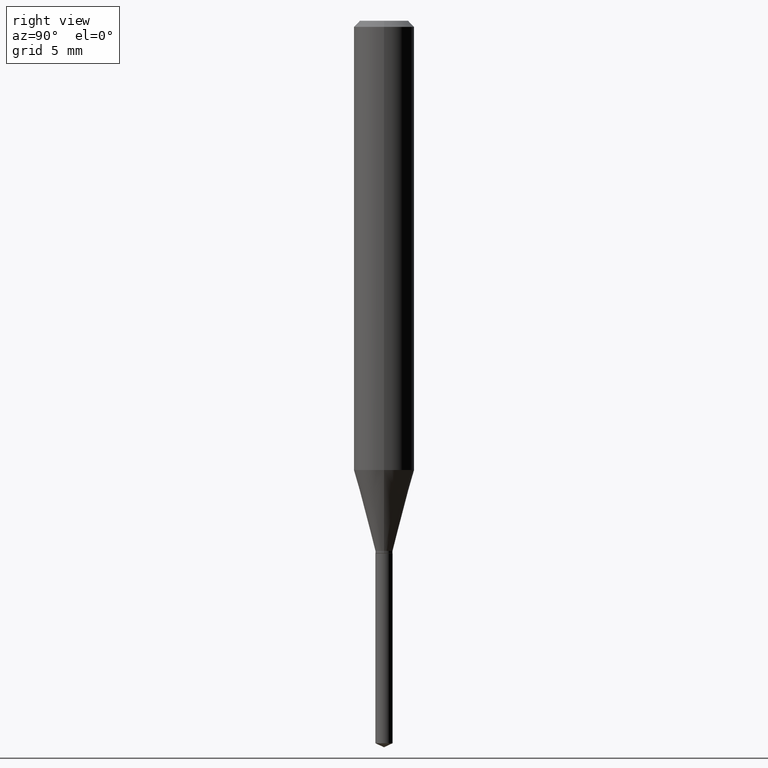
[diagram: clean part render]
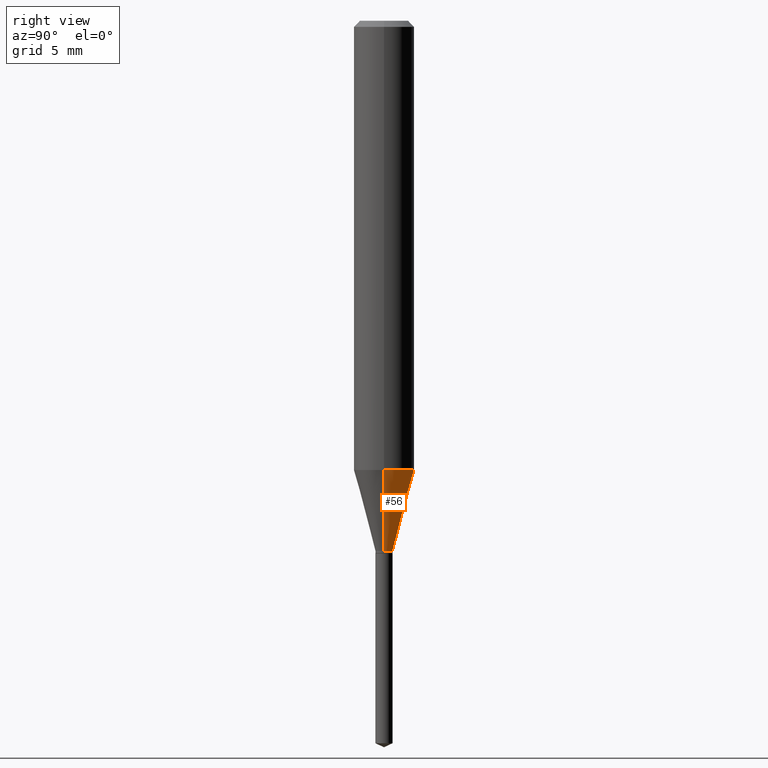
[diagram: same view with one face highlighted and labeled with its STEP entity id]
A machine part, right view. The second image highlights one B-rep face of the part: STEP entity #56.
In plain terms, the highlighted conical surface has half-angle 15 deg.
Its self-contained STEP definition (entity closure, byte-faithful):
#7 = CIRCLE ( 'NONE', #146, 0.01770000000000000046 ) ;
#8 = VERTEX_POINT ( 'NONE', #40 ) ;
#16 = LINE ( 'NONE', #428, #79 ) ;
#19 = DIRECTION ( 'NONE',  ( -2.445468806185136597E-29, 3.491481338843145583E-15, 1.000000000000000000 ) ) ;
#40 = CARTESIAN_POINT ( 'NONE',  ( -0.06250000000000012490, -2.794274130170721718E-15, -0.9275041238209144057 ) ) ;
#47 = DIRECTION ( 'NONE',  ( 1.000000000000000000, -6.982962677686271444E-15, 0.000000000000000000 ) ) ;
#56 = ADVANCED_FACE ( 'NONE', ( #100 ), #205, .T. ) ;
#73 = EDGE_CURVE ( 'NONE', #264, #302, #16, .T. ) ;
#79 = VECTOR ( 'NONE', #288, 39.37007874015748854 ) ;
#100 = FACE_OUTER_BOUND ( 'NONE', #458, .T. ) ;
#105 = DIRECTION ( 'NONE',  ( 1.000000000000000000, -6.982962677686265922E-15, 0.000000000000000000 ) ) ;
#120 = DIRECTION ( 'NONE',  ( -2.445468806185136597E-29, 3.491481338843145583E-15, 1.000000000000000000 ) ) ;
#126 = EDGE_CURVE ( 'NONE', #302, #8, #460, .T. ) ;
#146 = AXIS2_PLACEMENT_3D ( 'NONE', #453, #120, #47 ) ;
#175 = DIRECTION ( 'NONE',  ( -2.445468806185136597E-29, 3.491481338843145583E-15, 1.000000000000000000 ) ) ;
#177 = VECTOR ( 'NONE', #221, 39.37007874015748854 ) ;
#183 = ORIENTED_EDGE ( 'NONE', *, *, #126, .F. ) ;
#205 = CONICAL_SURFACE ( 'NONE', #286, 0.01770000000000000046, 0.2617993877991499629 ) ;
#221 = DIRECTION ( 'NONE',  ( -0.2588190451025212391, 5.211531920934549464E-15, 0.9659258262890679791 ) ) ;
#261 = ORIENTED_EDGE ( 'NONE', *, *, #388, .T. ) ;
#264 = VERTEX_POINT ( 'NONE', #479 ) ;
#286 = AXIS2_PLACEMENT_3D ( 'NONE', #433, #175, #326 ) ;
#288 = DIRECTION ( 'NONE',  ( 0.2588190451025212391, 1.565188264969622362E-15, 0.9659258262890679791 ) ) ;
#302 = VERTEX_POINT ( 'NONE', #447 ) ;
#310 = EDGE_CURVE ( 'NONE', #313, #8, #368, .T. ) ;
#313 = VERTEX_POINT ( 'NONE', #363 ) ;
#321 = CARTESIAN_POINT ( 'NONE',  ( 2.268182402412122745E-29, -3.238363340020784728E-15, -0.9275041238209144057 ) ) ;
#326 = DIRECTION ( 'NONE',  ( 1.000000000000000000, -6.982962677686271444E-15, 0.000000000000000000 ) ) ;
#344 = ORIENTED_EDGE ( 'NONE', *, *, #310, .T. ) ;
#363 = CARTESIAN_POINT ( 'NONE',  ( -0.01770000000000000046, -3.704738112615278088E-15, -1.094700000000000228 ) ) ;
#366 = AXIS2_PLACEMENT_3D ( 'NONE', #321, #19, #105 ) ;
#368 = LINE ( 'NONE', #400, #177 ) ;
#388 = EDGE_CURVE ( 'NONE', #264, #313, #7, .T. ) ;
#400 = CARTESIAN_POINT ( 'NONE',  ( -0.01770000000000000046, -3.696358557402054871E-15, -1.094700000000000228 ) ) ;
#428 = CARTESIAN_POINT ( 'NONE',  ( 0.01770000000000000046, -3.945723061026639349E-15, -1.094700000000000228 ) ) ;
#433 = CARTESIAN_POINT ( 'NONE',  ( 2.677054702130869363E-29, -3.822124621631592164E-15, -1.094700000000000228 ) ) ;
#447 = CARTESIAN_POINT ( 'NONE',  ( 0.06250000000000012490, -3.674798507376177581E-15, -0.9275041238209144057 ) ) ;
#453 = CARTESIAN_POINT ( 'NONE',  ( 2.677054702130869363E-29, -3.822124621631592164E-15, -1.094700000000000228 ) ) ;
#458 = EDGE_LOOP ( 'NONE', ( #261, #344, #183, #487 ) ) ;
#460 = CIRCLE ( 'NONE', #366, 0.06250000000000011102 ) ;
#479 = CARTESIAN_POINT ( 'NONE',  ( 0.01770000000000000046, -3.945723061026639349E-15, -1.094700000000000228 ) ) ;
#487 = ORIENTED_EDGE ( 'NONE', *, *, #73, .F. ) ;